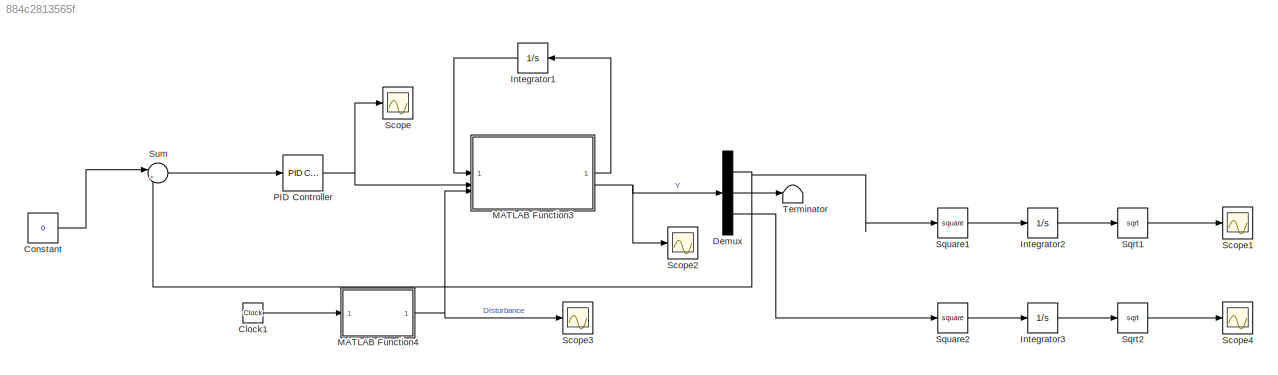
MODEL slx_884c2813565f
KIND model
CONFIG AbsTol = auto
CONFIG EnableMultiTasking = off
CONFIG FixedStep = auto
CONFIG MaxStep = auto
CONFIG MinStep = auto
CONFIG RelTol = 1e-3
CONFIG SampleTimeConstraint = Unconstrained
CONFIG SolverName = VariableStepAuto
CONFIG StartTime = 0.0
CONFIG StopTime = 30
BLOCK [Clock] Clock1
BLOCK [Constant] Constant
  Value = 0
BLOCK [Demux] Demux
  Outputs = 3
BLOCK [Integrator] Integrator1
  InitialCondition = [0;0;0;0]
  NameLocation = top
BLOCK [Integrator] Integrator2
BLOCK [Integrator] Integrator3
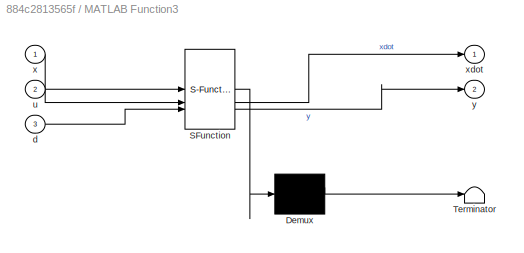
BLOCK [SubSystem] MATLAB Function3
  ErrorFcn = Stateflow.Translate.translate
  PermitHierarchicalResolution = ExplicitOnly
  SFBlockType = MATLAB Function
  TreatAsAtomicUnit = on
BLOCK [Demux] MATLAB Function3/ Demux 
  Outputs = 1
BLOCK [S-Function] MATLAB Function3/ SFunction 
  EnableBusSupport = on
  FunctionName = sf_sfun
  PortCounts = [3 3]
  SFcnIsStateOwnerBlock = off
  SFunctionDeploymentMode = off
  Tag = Stateflow S-Function 4
BLOCK [Terminator] MATLAB Function3/ Terminator 
BLOCK [Inport] MATLAB Function3/d
  Port = 3
BLOCK [Inport] MATLAB Function3/u
  Port = 2
BLOCK [Inport] MATLAB Function3/x
BLOCK [Outport] MATLAB Function3/xdot
BLOCK [Outport] MATLAB Function3/y
  Port = 2
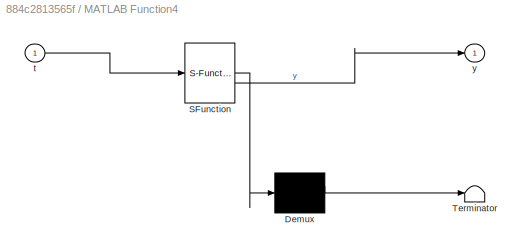
BLOCK [SubSystem] MATLAB Function4
  ErrorFcn = Stateflow.Translate.translate
  PermitHierarchicalResolution = ExplicitOnly
  SFBlockType = MATLAB Function
  TreatAsAtomicUnit = on
BLOCK [Demux] MATLAB Function4/ Demux 
  Outputs = 1
BLOCK [S-Function] MATLAB Function4/ SFunction 
  EnableBusSupport = on
  FunctionName = sf_sfun
  PortCounts = [1 2]
  SFcnIsStateOwnerBlock = off
  SFunctionDeploymentMode = off
  Tag = Stateflow S-Function 5
BLOCK [Terminator] MATLAB Function4/ Terminator 
BLOCK [Inport] MATLAB Function4/t
BLOCK [Outport] MATLAB Function4/y
BLOCK [Reference] PID Controller  REF=slpidlib/PID Controller
  LibrarySourceBlock = simulink/Continuous/PID Controller
  SourceBlock = slpidlib/PID Controller
  SourceType = PID 1dof
BLOCK [Scope] Scope
  Floating = off
  NumInputPorts = 1
  ScopeSpecificationString = Simulink.scopes.TimeScopeBlockCfg('CurrentConfiguration', extmgr.ConfigurationSet(extmgr.Configuration('Core','General UI',true),extmgr.Configuration('Core','Source UI',true),extmgr.Configuration('Sources','WiredSimulink',true),extmgr.Configuration('Visuals','Time Domain',true,'SerializedDisplays',{struct('MinYLimReal','-18579111956681.60156','MaxYLimReal','2064345772964.62207','YLabelReal','','Mi...<+1549ch>
BLOCK [Scope] Scope1
  Floating = off
  NumInputPorts = 1
  ScopeSpecificationString = Simulink.scopes.TimeScopeBlockCfg('CurrentConfiguration', extmgr.ConfigurationSet(extmgr.Configuration('Core','General UI',true),extmgr.Configuration('Core','Source UI',true),extmgr.Configuration('Sources','WiredSimulink',true,'DataLoggingVariableName','ScopeData1'),extmgr.Configuration('Visuals','Time Domain',true,'SerializedDisplays',{struct('MinYLimReal','-12080481.70845','MaxYLimReal','1087243...<+1511ch>
BLOCK [Scope] Scope2
  Floating = off
  NumInputPorts = 1
  ScopeSpecificationString = Simulink.scopes.TimeScopeBlockCfg('CurrentConfiguration', extmgr.ConfigurationSet(extmgr.Configuration('Core','General UI',true),extmgr.Configuration('Core','Source UI',true),extmgr.Configuration('Sources','WiredSimulink',true,'DataLoggingVariableName','ScopeData2'),extmgr.Configuration('Visuals','Time Domain',true,'SerializedDisplays',{struct('MinYLimReal','-254801587.22494','MaxYLimReal','875290...<+1691ch>
BLOCK [Scope] Scope3
  Floating = off
  NumInputPorts = 1
  ScopeSpecificationString = Simulink.scopes.TimeScopeBlockCfg('CurrentConfiguration', extmgr.ConfigurationSet(extmgr.Configuration('Core','General UI',true),extmgr.Configuration('Core','Source UI',true),extmgr.Configuration('Sources','WiredSimulink',true,'DataLoggingVariableName','ScopeData3'),extmgr.Configuration('Visuals','Time Domain',true,'SerializedDisplays',{struct('MinYLimReal','-0.125','MaxYLimReal','1.125','YLabelRe...<+1499ch>
BLOCK [Scope] Scope4
  Floating = off
  NumInputPorts = 1
  ScopeSpecificationString = Simulink.scopes.TimeScopeBlockCfg('CurrentConfiguration', extmgr.ConfigurationSet(extmgr.Configuration('Core','General UI',true),extmgr.Configuration('Core','Source UI',true),extmgr.Configuration('Sources','WiredSimulink',true,'DataLoggingVariableName','ScopeData4'),extmgr.Configuration('Visuals','Time Domain',true,'SerializedDisplays',{struct('MinYLimReal','-39131923.81027','MaxYLimReal','3521873...<+1511ch>
BLOCK [Sqrt] Sqrt1
BLOCK [Sqrt] Sqrt2
BLOCK [Math] Square1
  Operator = square
BLOCK [Math] Square2
  Operator = square
BLOCK [Sum] Sum
  Inputs = |+-
BLOCK [Terminator] Terminator
LINE Clock1:1 -> MATLAB Function4:1
LINE Constant:1 -> Sum:1
NET Demux:1 -> Square1:1, Sum:2
LINE Demux:2 -> Terminator:1
LINE Demux:3 -> Square2:1
LINE Integrator1:1 -> MATLAB Function3:1
LINE Integrator2:1 -> Sqrt1:1
LINE Integrator3:1 -> Sqrt2:1
LINE MATLAB Function3:1 -> Integrator1:1
NET MATLAB Function3:2 -> Demux:1, Scope2:1
NET MATLAB Function4:1 -> MATLAB Function3:3, Scope3:1
NET PID Controller:1 -> MATLAB Function3:2, Scope:1
LINE Sqrt1:1 -> Scope1:1
LINE Sqrt2:1 -> Scope4:1
LINE Square1:1 -> Integrator2:1
LINE Square2:1 -> Integrator3:1
LINE Sum:1 -> PID Controller:1
note: NET lines group one-source signal fan-out (src -> all destinations, sorted); 1:1 wires keep LINE
CHART MATLAB Function3 states=1 transitions=1
  STATE_LABEL 'eML_blk_kernel()'
  STATE_LABEL 'SCRIPT:\nfunction [xdot,y]= SystemDynamics(x,u,d)\n\n% Parameter Definition\nMs = 2500;\nMu = 320;\nks = 80000;\nku = 500000;\ncs = 350;\ncu = 15020;\n\nA = [0 1 0 0;\n     0 -cs/Ms -ks/Ms cs/Ms;\n     0 1 0 -1;\n     -ku/Mu cs/Mu (ks+ku)/Mu -(cs+cu)/Mu];\n     \nB = [0; 1/Ms; 0; -1/Mu];  % Input matrix\n\nC = [1 0 0 0; 0 1 0 0; 0 0 1 0];\n\nAd = [0.9241    0.0945   -0.0672    0.0013;\n   -2.0392    0.8450   -0.6570  ...<+262ch>'
CHART MATLAB Function4 states=1 transitions=1
  STATE_LABEL 'eML_blk_kernel()'
  STATE_LABEL 'SCRIPT:\nfunction y = Disturbance(t)\n\nif t>=4 & t<5 \n    y = t-4;\nelseif t>=5 & t<7\n    y = 1;\nelseif t>=7 & t<8\n    y = -t+8;\nelse \n    y = 0;\nend\n\n\n\n'
CHART  states=0 transitions=0
CHART  states=0 transitions=0
